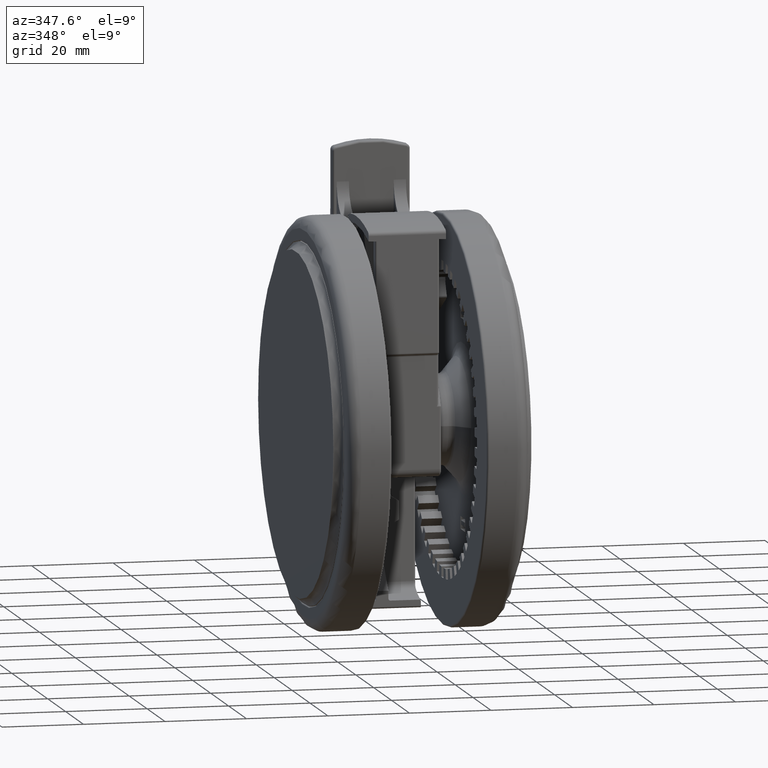
[diagram: clean part render]
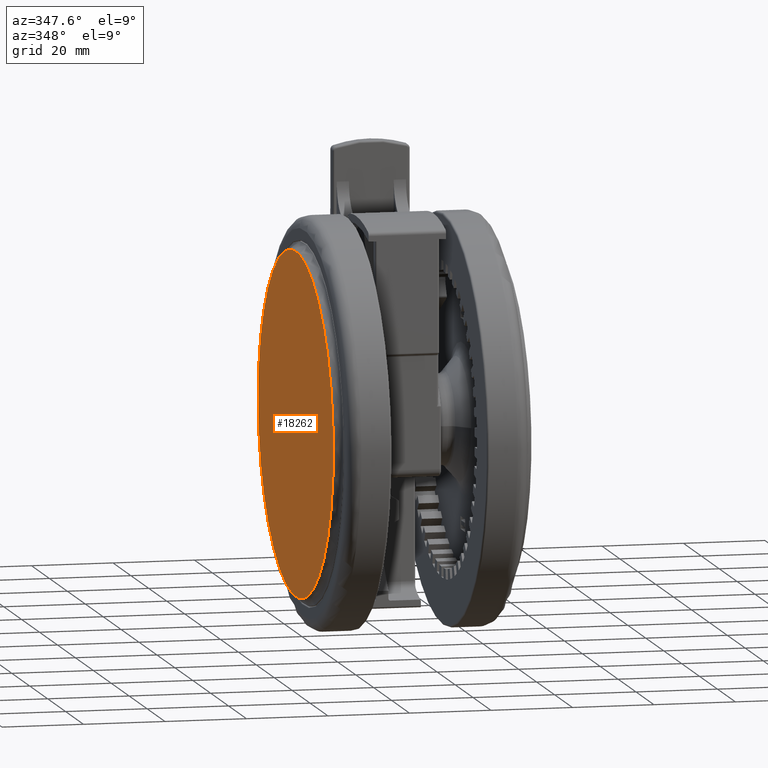
[diagram: same view with one face highlighted and labeled with its STEP entity id]
A machine part, auxiliary view. The second image highlights one B-rep face of the part: STEP entity #18262.
In plain terms, the highlighted planar face has unit normal (1, -0, 0).
Its self-contained STEP definition (entity closure, byte-faithful):
#3198 = CARTESIAN_POINT ( 'NONE',  ( 0.0000000000000000000, -7.806255641895631900E-015, -48.59999999999984500 ) ) ;
#5016 = AXIS2_PLACEMENT_3D ( 'NONE', #3198, #29684, #7004 ) ;
#7004 = DIRECTION ( 'NONE',  ( 0.9587657712597810200, -0.2841974592789974800, 0.0000000000000000000 ) ) ;
#8073 = DIRECTION ( 'NONE',  ( -0.9587657712597810200, 0.2841974592789973700, 1.377383883340829000E-018 ) ) ;
#14083 = EDGE_CURVE ( 'NONE', #16433, #38677, #26581, .T. ) ;
#14659 = EDGE_LOOP ( 'NONE', ( #17910, #28820 ) ) ;
#15676 = DIRECTION ( 'NONE',  ( -3.380642383533773200E-017, -2.202247500052102700E-016, -1.000000000000000000 ) ) ;
#16433 = VERTEX_POINT ( 'NONE', #18794 ) ;
#17910 = ORIENTED_EDGE ( 'NONE', *, *, #37594, .T. ) ;
#18262 = ADVANCED_FACE ( 'NONE', ( #23040 ), #26904, .F. ) ;
#18794 = CARTESIAN_POINT ( 'NONE',  ( -40.26816239291080300, 11.93629328971787900, -48.59999999999984500 ) ) ;
#23040 = FACE_OUTER_BOUND ( 'NONE', #14659, .T. ) ;
#23110 = CARTESIAN_POINT ( 'NONE',  ( 0.0000000000000000000, -7.806255641895631900E-015, -48.59999999999984500 ) ) ;
#26581 = CIRCLE ( 'NONE', #5016, 42.00000000000000000 ) ;
#26904 = PLANE ( 'NONE',  #32815 ) ;
#28820 = ORIENTED_EDGE ( 'NONE', *, *, #14083, .T. ) ;
#29684 = DIRECTION ( 'NONE',  ( -3.380642383533773200E-017, -2.202247500052102700E-016, -1.000000000000000000 ) ) ;
#29993 = CIRCLE ( 'NONE', #48037, 42.00000000000000000 ) ;
#30740 = DIRECTION ( 'NONE',  ( 6.405764716563957100E-017, 2.112576789350188500E-016, 1.000000000000000000 ) ) ;
#32815 = AXIS2_PLACEMENT_3D ( 'NONE', #23110, #30740, #8073 ) ;
#34492 = CARTESIAN_POINT ( 'NONE',  ( 40.26816239291080300, -11.93629328971789700, -48.59999999999984500 ) ) ;
#37594 = EDGE_CURVE ( 'NONE', #38677, #16433, #29993, .T. ) ;
#38348 = CARTESIAN_POINT ( 'NONE',  ( 0.0000000000000000000, -7.806255641895631900E-015, -48.59999999999984500 ) ) ;
#38677 = VERTEX_POINT ( 'NONE', #34492 ) ;
#42097 = DIRECTION ( 'NONE',  ( 0.9587657712597810200, -0.2841974592789974800, 0.0000000000000000000 ) ) ;
#48037 = AXIS2_PLACEMENT_3D ( 'NONE', #38348, #15676, #42097 ) ;